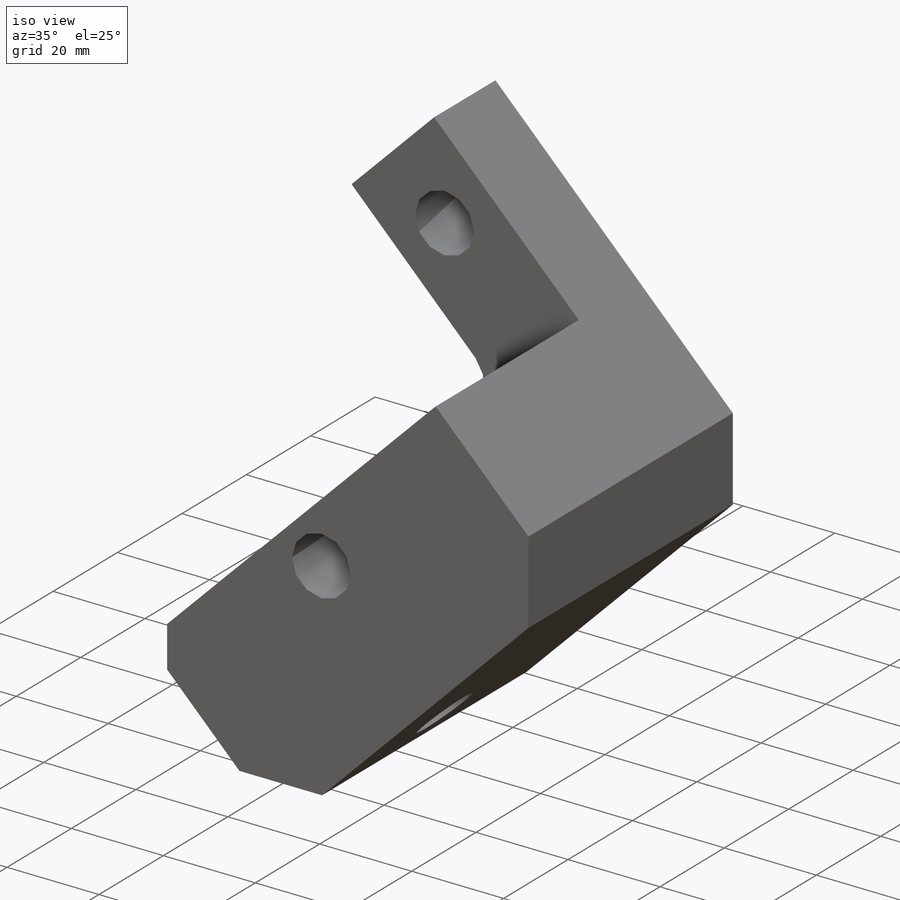
[diagram: iso view]
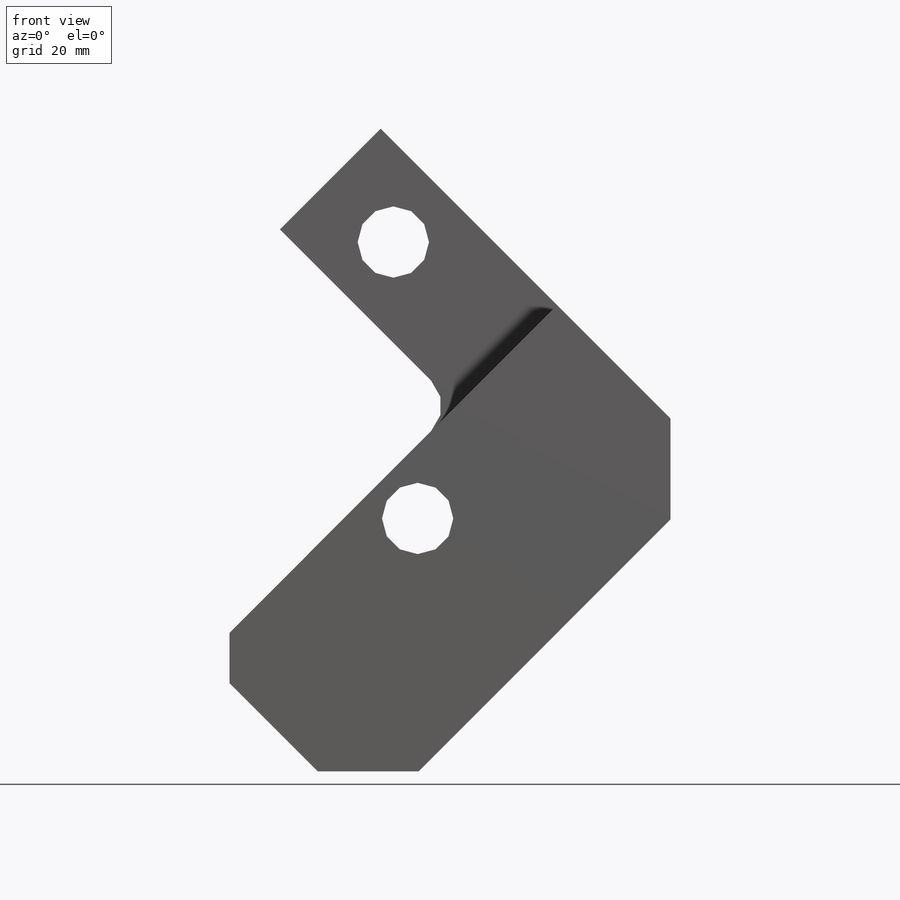
[diagram: front view]
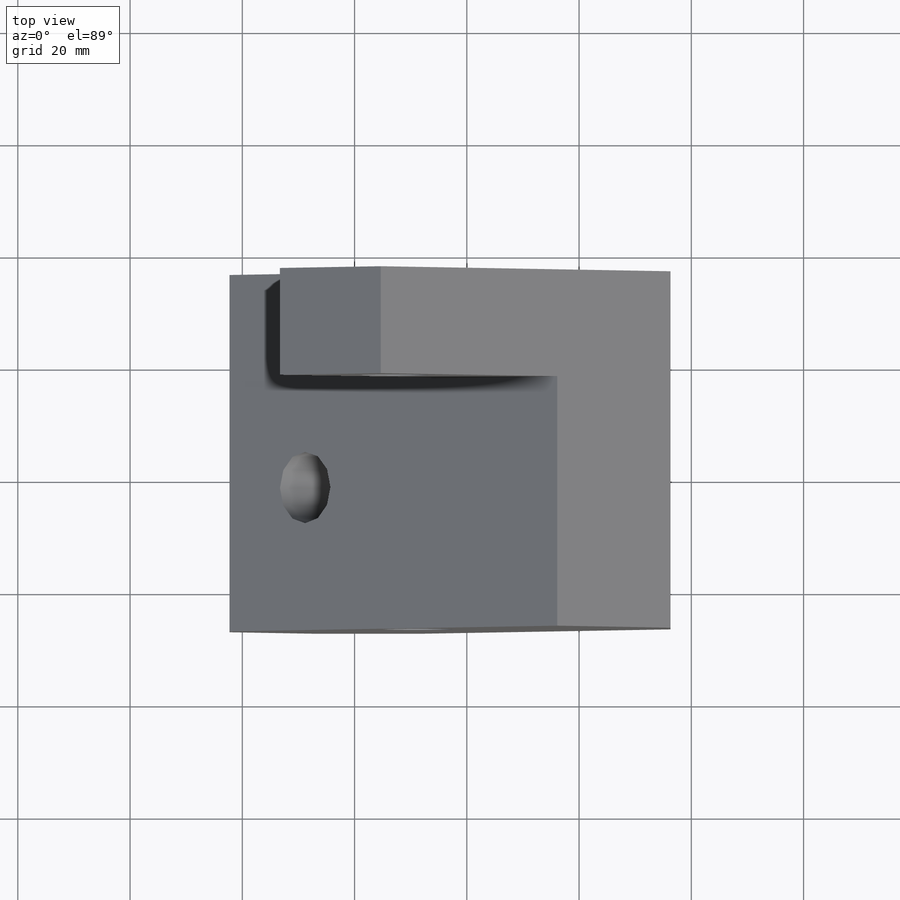
[diagram: top view]
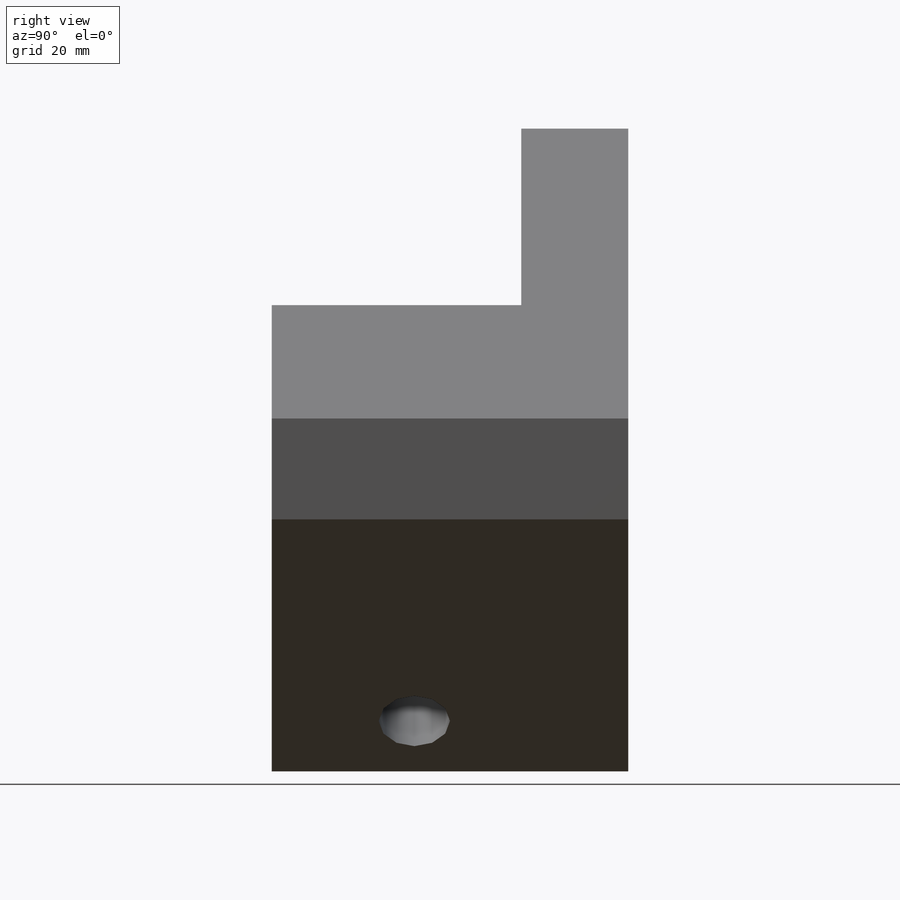
[diagram: right view]
SOLIDWORKS PART (.sldprt)
format: sldprt  version: not decoded by parser v0  size: 237,056 bytes
history: native  units: mm
features: sketch x6, hole x2, material x1, cut_extrude x1, fillet x1, extrude x1 (+16 scaffold rows collapsed)
feature tree (28):
  scaffold x16  (default folders/planes/origin — collapsed)
  material  "AISI 1018 Steel, Cold Rolled"
  hole  "1/2-20 Tapped Hole1"  Diameter=12.7mm Depth=104.780168mm
  sketch  "Sketch3"  dims[D1=25.4mm D2=25.4mm]
  sketch  "Sketch2"  dims[hole-wizard template sketch: 60 standard entries collapsed; hole parameters kept: c18.Thru Hole Depth=~104.780168mm]
  sketch  "Sketch4"  dims[D1=6.35mm]
  cut_extrude  "Cut-Extrude3"  [1 undecoded]
  fillet  "Fillet1"  Radius=6.35mm
  sketch  "Sketch5"
  extrude  "Extrude1"  [1 undecoded]
  hole  "1/2-20 Tapped Hole2"  Diameter=11.50874mm Depth=63.5mm
  sketch  "Sketch6"  dims[c1.D1=15.875mm c1.D2=~14.080783mm c1.D3=~28.546943mm c2.D1=12.7mm c2.D2=15.875mm]
  sketch  "Sketch7"  dims[hole-wizard template sketch: 41 standard entries collapsed; hole parameters kept: c12.Thru Tap Drill Dia.=~11.50874mm c12.Thru Tap Drill Depth=63.5mm c12.Thread Dia.=12.7mm c12.Thread Depth=25.4mm]
decode coverage: 8 of 11 modeling features carry decoded parameters
note: ~ marks probable driven/reference dimensions
note: 2 parameter values undecoded
note: suppression state not decoded; provenance and decode notes live in map.json
